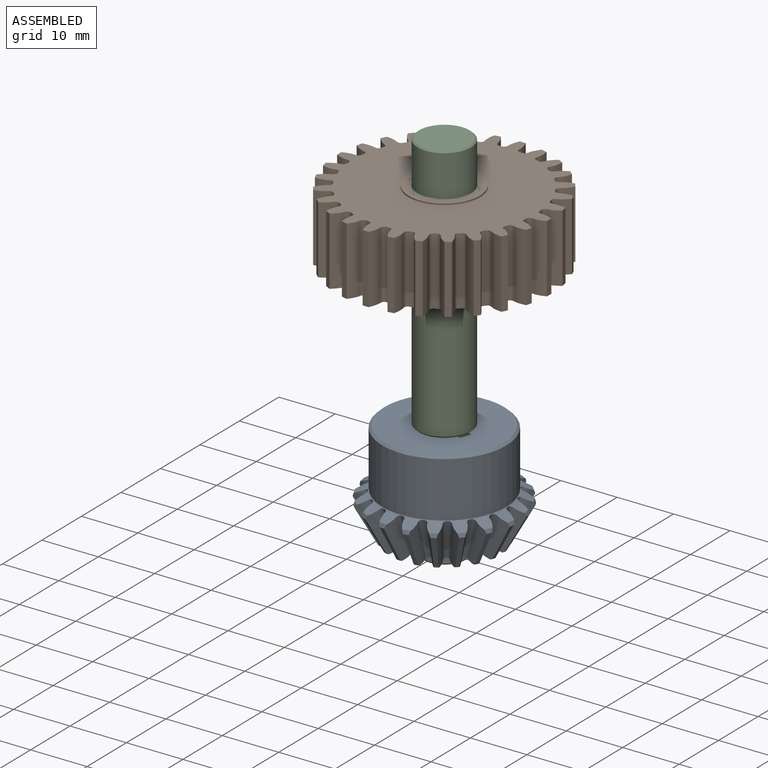
[diagram: assembled view]
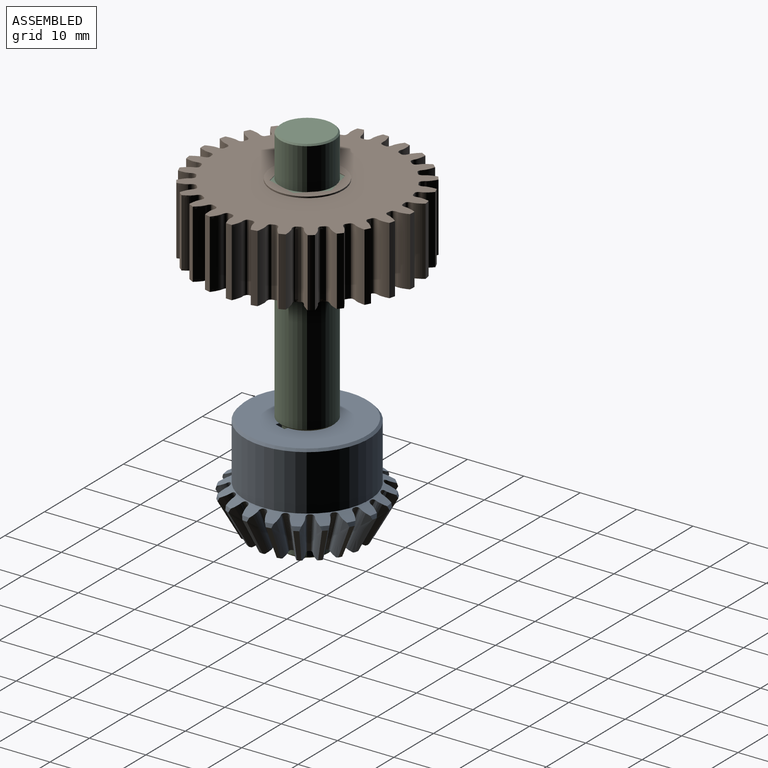
[diagram: assembled view, second angle]
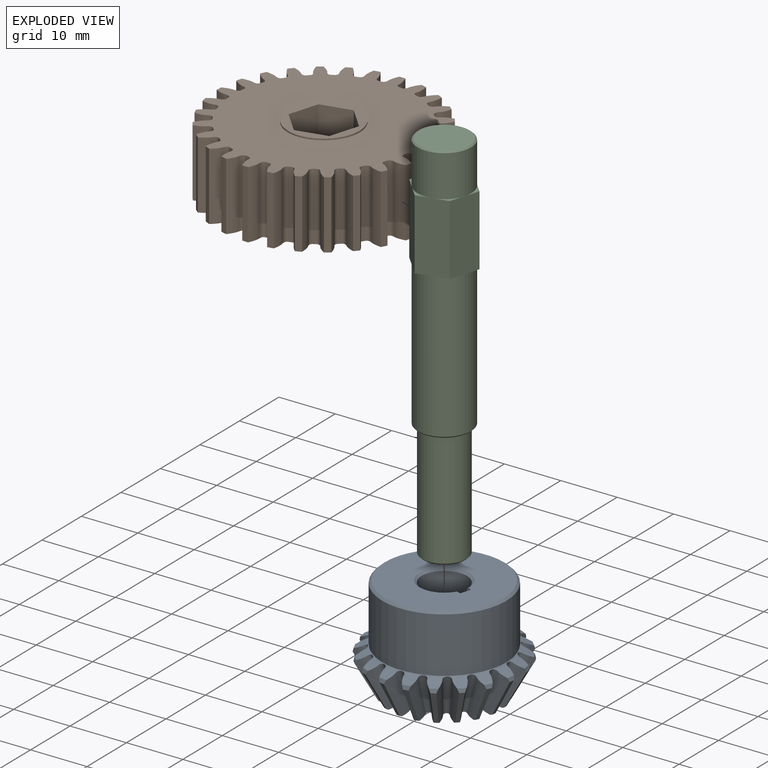
[diagram: exploded view]
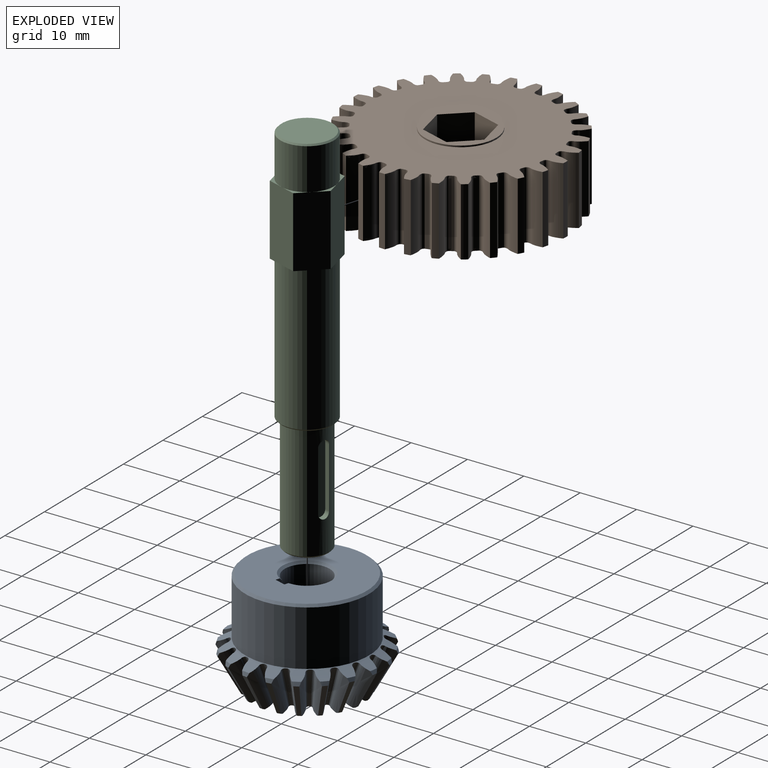
[diagram: exploded view, second angle]
ASSEMBLY  parts=3 mates=2
PART A: 213 faces, bbox 27.2x18.7x27.2 mm
  f0: cylinder r=11mm len=22mm, axis (0,-1,0), area 680.8mm2, adj f1,f7
  f1: cone r=11mm half-angle=45deg, axis (0,1,0), area 38.4mm2, adj f0,f8
  f2: cone r=11.1mm half-angle=63.4deg, axis (0,1,0), area 104.5mm2, adj f5,f7,f9,f10,f11,f12,f13,f14
  f3: cylinder r=4mm len=16.2mm, axis (0,1,0), area 373.4mm2, adj f4,f69,f210,f212
  f4: cone r=4.4mm half-angle=45deg, axis (0,1,0), area 13.8mm2, adj f3,f209,f210,f212
  f5: cone r=11.1mm half-angle=23.4deg, axis (0,-1,0), area 1.3mm2, adj f2,f6,f177,f178
  f6: cone r=9.51mm half-angle=63.4deg, axis (0,1,0), area 118.7mm2, adj f5,f9,f11,f12,f14,f15,f17,f18
  f7: plane 22x22mm, normal (0,1,0), area 0.1mm2, adj f0,f2
  f8: plane 21.2x21.2mm, normal (0,-1,0), area 290.8mm2, adj f1,f69,f210,f211,f212
  f9: bspline ~8.17x4.69mm, area 15.8mm2, adj f2,f6,f10,f70,f71,f72
  f10: cone r=13.38mm half-angle=18.4deg, axis (0,1,0), area 0.8mm2, adj f2,f9,f11,f72
  f11: bspline ~8.17x5.02mm, area 15.8mm2, adj f2,f6,f10,f71,f72,f73
  f12: bspline ~8.17x4.1mm, area 15.8mm2, adj f2,f6,f13,f74,f75,f76
  f13: cone r=13.38mm half-angle=18.4deg, axis (0,1,0), area 0.8mm2, adj f2,f12,f14,f76
  f14: bspline ~8.17x4.1mm, area 15.8mm2, adj f2,f6,f13,f75,f76,f77
  f15: bspline ~8.17x5.02mm, area 15.8mm2, adj f2,f6,f16,f78,f79,f80
  f16: cone r=13.38mm half-angle=18.4deg, axis (0,1,0), area 0.8mm2, adj f2,f15,f17,f80
  f17: bspline ~8.17x4.69mm, area 15.8mm2, adj f2,f6,f16,f79,f80,f81
  f18: bspline ~8.17x5.44mm, area 15.8mm2, adj f2,f6,f19,f82,f83,f84
  f19: cone r=13.38mm half-angle=18.4deg, axis (0,1,0), area 0.8mm2, adj f2,f18,f20,f84
  f20: bspline ~8.17x5.33mm, area 15.8mm2, adj f2,f6,f19,f83,f84,f85
  f21: bspline ~8.17x5.33mm, area 15.8mm2, adj f2,f6,f22,f86,f87,f88
  f22: cone r=13.38mm half-angle=18.4deg, axis (0,1,0), area 0.8mm2, adj f2,f21,f23,f88
  f23: bspline ~8.17x5.44mm, area 15.8mm2, adj f2,f6,f22,f87,f88,f89
  f24: bspline ~8.17x4.69mm, area 15.8mm2, adj f2,f6,f25,f90,f91,f92
  f25: cone r=13.38mm half-angle=18.4deg, axis (0,1,0), area 0.8mm2, adj f2,f24,f26,f92
  f26: bspline ~8.17x5.02mm, area 15.8mm2, adj f2,f6,f25,f91,f92,f93
  f27: bspline ~8.17x4.1mm, area 15.8mm2, adj f2,f6,f28,f94,f95,f96
  f28: cone r=13.38mm half-angle=18.4deg, axis (0,1,0), area 0.8mm2, adj f2,f27,f29,f96
  f29: bspline ~8.17x4.1mm, area 15.8mm2, adj f2,f6,f28,f95,f96,f97
  f30: bspline ~8.17x5.02mm, area 15.8mm2, adj f2,f6,f31,f98,f99,f100
  f31: cone r=13.38mm half-angle=18.4deg, axis (0,1,0), area 0.8mm2, adj f2,f30,f32,f100
  f32: bspline ~8.17x4.69mm, area 15.8mm2, adj f2,f6,f31,f99,f100,f101
  f33: bspline ~8.17x5.44mm, area 15.8mm2, adj f2,f6,f34,f102,f103,f104
  f34: cone r=13.38mm half-angle=18.4deg, axis (0,1,0), area 0.8mm2, adj f2,f33,f35,f104
  f35: bspline ~8.17x5.33mm, area 15.8mm2, adj f2,f6,f34,f103,f104,f105
  f36: bspline ~8.17x5.33mm, area 15.8mm2, adj f2,f6,f37,f106,f107,f108
  f37: cone r=13.38mm half-angle=18.4deg, axis (0,1,0), area 0.8mm2, adj f2,f36,f38,f108
  f38: bspline ~8.17x5.44mm, area 15.8mm2, adj f2,f6,f37,f107,f108,f109
  f39: bspline ~8.17x4.69mm, area 15.8mm2, adj f2,f6,f40,f110,f111,f112
  f40: cone r=13.38mm half-angle=18.4deg, axis (0,1,0), area 0.8mm2, adj f2,f39,f41,f112
  f41: bspline ~8.17x5.02mm, area 15.8mm2, adj f2,f6,f40,f111,f112,f113
  f42: bspline ~8.17x4.1mm, area 15.8mm2, adj f2,f6,f43,f114,f115,f116
  f43: cone r=13.38mm half-angle=18.4deg, axis (0,1,0), area 0.8mm2, adj f2,f42,f44,f116
  f44: bspline ~8.17x4.1mm, area 15.8mm2, adj f2,f6,f43,f115,f116,f117
  f45: bspline ~8.17x5.02mm, area 15.8mm2, adj f2,f6,f46,f118,f119,f120
  f46: cone r=13.38mm half-angle=18.4deg, axis (0,1,0), area 0.8mm2, adj f2,f45,f47,f120
  f47: bspline ~8.17x4.69mm, area 15.8mm2, adj f2,f6,f46,f119,f120,f121
  f48: bspline ~8.17x5.44mm, area 15.8mm2, adj f2,f6,f49,f122,f123,f124
  f49: cone r=13.38mm half-angle=18.4deg, axis (0,1,0), area 0.8mm2, adj f2,f48,f50,f124
  f50: bspline ~8.17x5.33mm, area 15.8mm2, adj f2,f6,f49,f123,f124,f125
  f51: bspline ~8.17x5.33mm, area 15.8mm2, adj f2,f6,f52,f126,f127,f128
  f52: cone r=13.38mm half-angle=18.4deg, axis (0,1,0), area 0.8mm2, adj f2,f51,f53,f128
  f53: bspline ~8.17x5.44mm, area 15.8mm2, adj f2,f6,f52,f127,f128,f129
  f54: bspline ~8.17x4.69mm, area 15.8mm2, adj f2,f6,f55,f130,f131,f132
  f55: cone r=13.38mm half-angle=18.4deg, axis (0,1,0), area 0.8mm2, adj f2,f54,f56,f132
  f56: bspline ~8.17x5.02mm, area 15.8mm2, adj f2,f6,f55,f131,f132,f133
  f57: bspline ~8.17x4.1mm, area 15.8mm2, adj f2,f6,f58,f134,f135,f136
  f58: cone r=13.38mm half-angle=18.4deg, axis (0,1,0), area 0.8mm2, adj f2,f57,f59,f136
  f59: bspline ~8.17x4.1mm, area 15.8mm2, adj f2,f6,f58,f135,f136,f137
  f60: bspline ~8.17x5.02mm, area 15.8mm2, adj f2,f6,f61,f138,f139,f140
  f61: cone r=13.38mm half-angle=18.4deg, axis (0,1,0), area 0.8mm2, adj f2,f60,f62,f140
  f62: bspline ~8.17x4.69mm, area 15.8mm2, adj f2,f6,f61,f139,f140,f141
  f63: bspline ~8.17x5.44mm, area 15.8mm2, adj f2,f6,f64,f142,f143,f144
  f64: cone r=13.38mm half-angle=18.4deg, axis (0,1,0), area 0.8mm2, adj f2,f63,f65,f144
  f65: bspline ~8.17x5.33mm, area 15.8mm2, adj f2,f6,f64,f143,f144,f145
  f66: bspline ~8.17x5.33mm, area 15.8mm2, adj f2,f6,f67,f146,f147,f148
  f67: cone r=13.38mm half-angle=18.4deg, axis (0,1,0), area 0.8mm2, adj f2,f66,f68,f148
  f68: bspline ~8.17x5.44mm, area 15.8mm2, adj f2,f6,f67,f147,f148,f149
  f69: cone r=4.4mm half-angle=45deg, axis (0,-1,0), area 13.8mm2, adj f3,f8,f210,f212
  f70: bspline ~7.91x3.53mm, area 6.7mm2, adj f2,f6,f9,f150
  f71: cone r=9.84mm half-angle=71.6deg, axis (0,-1,0), area 0.3mm2, adj f6,f9,f11,f72
  f72: bspline ~6.61x3.64mm, area 5.6mm2, adj f9,f10,f11,f71
  f73: bspline ~7.91x3.53mm, area 6.7mm2, adj f2,f6,f11,f151
  f74: bspline ~7.91x2.86mm, area 6.7mm2, adj f2,f6,f12,f152
  f75: cone r=9.84mm half-angle=71.6deg, axis (0,-1,0), area 0.3mm2, adj f6,f12,f14,f76
  f76: bspline ~6.61x3.17mm, area 5.6mm2, adj f12,f13,f14,f75
  f77: bspline ~7.91x2.86mm, area 6.7mm2, adj f2,f6,f14,f153
  f78: bspline ~7.91x3.53mm, area 6.7mm2, adj f2,f6,f15,f154
  f79: cone r=9.84mm half-angle=71.6deg, axis (0,-1,0), area 0.3mm2, adj f6,f15,f17,f80
  f80: bspline ~6.61x3.64mm, area 5.6mm2, adj f15,f16,f17,f79
  f81: bspline ~7.91x3.53mm, area 6.7mm2, adj f2,f6,f17,f155
  f82: bspline ~7.91x3.89mm, area 6.7mm2, adj f2,f6,f18,f156
  f83: cone r=9.84mm half-angle=71.6deg, axis (0,-1,0), area 0.3mm2, adj f6,f18,f20,f84
  f84: bspline ~6.61x3.76mm, area 5.6mm2, adj f18,f19,f20,f83
  f85: bspline ~7.91x3.88mm, area 6.7mm2, adj f2,f6,f20,f157
  f86: bspline ~7.91x3.88mm, area 6.7mm2, adj f2,f6,f21,f158
  f87: cone r=9.84mm half-angle=71.6deg, axis (0,-1,0), area 0.3mm2, adj f6,f21,f23,f88
  f88: bspline ~6.61x3.76mm, area 5.6mm2, adj f21,f22,f23,f87
  f89: bspline ~7.91x3.89mm, area 6.7mm2, adj f2,f6,f23,f159
  f90: bspline ~7.91x3.53mm, area 6.7mm2, adj f2,f6,f24,f160
  f91: cone r=9.84mm half-angle=71.6deg, axis (0,-1,0), area 0.3mm2, adj f6,f24,f26,f92
  f92: bspline ~6.61x3.64mm, area 5.6mm2, adj f24,f25,f26,f91
  f93: bspline ~7.91x3.53mm, area 6.7mm2, adj f2,f6,f26,f161
  f94: bspline ~7.91x2.86mm, area 6.7mm2, adj f2,f6,f27,f162
  f95: cone r=9.84mm half-angle=71.6deg, axis (0,-1,0), area 0.3mm2, adj f6,f27,f29,f96
  f96: bspline ~6.61x3.17mm, area 5.6mm2, adj f27,f28,f29,f95
  f97: bspline ~7.91x2.86mm, area 6.7mm2, adj f2,f6,f29,f163
  f98: bspline ~7.91x3.53mm, area 6.7mm2, adj f2,f6,f30,f164
  f99: cone r=9.84mm half-angle=71.6deg, axis (0,-1,0), area 0.3mm2, adj f6,f30,f32,f100
  f100: bspline ~6.61x3.64mm, area 5.6mm2, adj f30,f31,f32,f99
  f101: bspline ~7.91x3.53mm, area 6.7mm2, adj f2,f6,f32,f165
  f102: bspline ~7.91x3.89mm, area 6.7mm2, adj f2,f6,f33,f166
  f103: cone r=9.84mm half-angle=71.6deg, axis (0,-1,0), area 0.3mm2, adj f6,f33,f35,f104
  f104: bspline ~6.61x3.76mm, area 5.6mm2, adj f33,f34,f35,f103
  f105: bspline ~7.91x3.88mm, area 6.7mm2, adj f2,f6,f35,f167
  f106: bspline ~7.91x3.88mm, area 6.7mm2, adj f2,f6,f36,f168
  f107: cone r=9.84mm half-angle=71.6deg, axis (0,-1,0), area 0.3mm2, adj f6,f36,f38,f108
  f108: bspline ~6.61x3.76mm, area 5.6mm2, adj f36,f37,f38,f107
  f109: bspline ~7.91x3.89mm, area 6.7mm2, adj f2,f6,f38,f169
  f110: bspline ~7.91x3.53mm, area 6.7mm2, adj f2,f6,f39,f170
  f111: cone r=9.84mm half-angle=71.6deg, axis (0,-1,0), area 0.3mm2, adj f6,f39,f41,f112
  f112: bspline ~6.61x3.64mm, area 5.6mm2, adj f39,f40,f41,f111
  f113: bspline ~7.91x3.53mm, area 6.7mm2, adj f2,f6,f41,f171
  f114: bspline ~7.91x2.86mm, area 6.7mm2, adj f2,f6,f42,f172
  f115: cone r=9.84mm half-angle=71.6deg, axis (0,-1,0), area 0.3mm2, adj f6,f42,f44,f116
  f116: bspline ~6.61x3.17mm, area 5.6mm2, adj f42,f43,f44,f115
  f117: bspline ~7.91x2.86mm, area 6.7mm2, adj f2,f6,f44,f173
  f118: bspline ~7.91x3.53mm, area 6.7mm2, adj f2,f6,f45,f174
  f119: cone r=9.84mm half-angle=71.6deg, axis (0,-1,0), area 0.3mm2, adj f6,f45,f47,f120
  f120: bspline ~6.61x3.64mm, area 5.6mm2, adj f45,f46,f47,f119
  f121: bspline ~7.91x3.53mm, area 6.7mm2, adj f2,f6,f47,f175
  f122: bspline ~7.91x3.89mm, area 6.7mm2, adj f2,f6,f48,f176
  f123: cone r=9.84mm half-angle=71.6deg, axis (0,-1,0), area 0.3mm2, adj f6,f48,f50,f124
  f124: bspline ~6.61x3.76mm, area 5.6mm2, adj f48,f49,f50,f123
  f125: bspline ~7.91x3.88mm, area 6.7mm2, adj f2,f6,f50,f177
  f126: bspline ~7.91x3.88mm, area 6.7mm2, adj f2,f6,f51,f178
  f127: cone r=9.84mm half-angle=71.6deg, axis (0,-1,0), area 0.3mm2, adj f6,f51,f53,f128
  f128: bspline ~6.61x3.76mm, area 5.6mm2, adj f51,f52,f53,f127
  f129: bspline ~7.91x3.89mm, area 6.7mm2, adj f2,f6,f53,f179
  f130: bspline ~7.91x3.53mm, area 6.7mm2, adj f2,f6,f54,f180
  f131: cone r=9.84mm half-angle=71.6deg, axis (0,-1,0), area 0.3mm2, adj f6,f54,f56,f132
  f132: bspline ~6.61x3.64mm, area 5.6mm2, adj f54,f55,f56,f131
  f133: bspline ~7.91x3.53mm, area 6.7mm2, adj f2,f6,f56,f181
  f134: bspline ~7.91x2.86mm, area 6.7mm2, adj f2,f6,f57,f182
  f135: cone r=9.84mm half-angle=71.6deg, axis (0,-1,0), area 0.3mm2, adj f6,f57,f59,f136
  f136: bspline ~6.61x3.17mm, area 5.6mm2, adj f57,f58,f59,f135
  f137: bspline ~7.91x2.86mm, area 6.7mm2, adj f2,f6,f59,f183
  f138: bspline ~7.91x3.53mm, area 6.7mm2, adj f2,f6,f60,f184
  f139: cone r=9.84mm half-angle=71.6deg, axis (0,-1,0), area 0.3mm2, adj f6,f60,f62,f140
  f140: bspline ~6.61x3.64mm, area 5.6mm2, adj f60,f61,f62,f139
  f141: bspline ~7.91x3.53mm, area 6.7mm2, adj f2,f6,f62,f185
  f142: bspline ~7.91x3.89mm, area 6.7mm2, adj f2,f6,f63,f186
  f143: cone r=9.84mm half-angle=71.6deg, axis (0,-1,0), area 0.3mm2, adj f6,f63,f65,f144
  f144: bspline ~6.61x3.76mm, area 5.6mm2, adj f63,f64,f65,f143
  f145: bspline ~7.91x3.88mm, area 6.7mm2, adj f2,f6,f65,f187
  f146: bspline ~7.91x3.88mm, area 6.7mm2, adj f2,f6,f66,f188
  f147: cone r=9.84mm half-angle=71.6deg, axis (0,-1,0), area 0.3mm2, adj f6,f66,f68,f148
  f148: bspline ~6.61x3.76mm, area 5.6mm2, adj f66,f67,f68,f147
  f149: bspline ~7.91x3.89mm, area 6.7mm2, adj f2,f6,f68,f189
  f150: plane 7.36x3.02mm, normal (-0.32,0,-0.95), area 0mm2, adj f2,f6,f70,f190
  f151: plane 7.36x2.59mm, normal (0.58,0,0.81), area 0mm2, adj f2,f6,f73,f191
  f152: plane 7.36x2.56mm, normal (-0.59,0,-0.8), area 0mm2, adj f2,f6,f74,f191
  f153: plane 7.36x2.56mm, normal (0.8,0,0.59), area 0mm2, adj f2,f6,f77,f192
  f154: plane 7.36x2.59mm, normal (-0.81,0,-0.58), area 0mm2, adj f2,f6,f78,f192
  f155: plane 7.36x3.02mm, normal (0.95,0,0.32), area 0mm2, adj f2,f6,f81,f193
  f156: plane 7.36x3.03mm, normal (-0.95,0,-0.3), area 0mm2, adj f2,f6,f82,f193
  f157: plane 7.36x3.18mm, normal (1,0,0.01), area 0mm2, adj f2,f6,f85,f194
  f158: plane 7.36x3.18mm, normal (-1,0,0.01), area 0mm2, adj f2,f6,f86,f194
  f159: plane 7.36x3.03mm, normal (0.95,0,-0.3), area 0mm2, adj f2,f6,f89,f195
  f160: plane 7.36x3.02mm, normal (-0.95,0,0.32), area 0mm2, adj f2,f6,f90,f195
  f161: plane 7.36x2.59mm, normal (0.81,0,-0.58), area 0mm2, adj f2,f6,f93,f196
  f162: plane 7.36x2.56mm, normal (-0.8,0,0.59), area 0mm2, adj f2,f6,f94,f196
  f163: plane 7.36x2.56mm, normal (0.59,0,-0.8), area 0mm2, adj f2,f6,f97,f197
  f164: plane 7.36x2.59mm, normal (-0.58,0,0.81), area 0mm2, adj f2,f6,f98,f197
  f165: plane 7.36x3.02mm, normal (0.32,0,-0.95), area 0mm2, adj f2,f6,f101,f198
  f166: plane 7.36x3.03mm, normal (-0.3,0,0.95), area 0mm2, adj f2,f6,f102,f198
  f167: plane 7.36x3.18mm, normal (0.01,0,-1), area 0mm2, adj f2,f6,f105,f199
  f168: plane 7.36x3.18mm, normal (0.01,0,1), area 0mm2, adj f2,f6,f106,f199
  f169: plane 7.36x3.03mm, normal (-0.3,0,-0.95), area 0mm2, adj f2,f6,f109,f200
  f170: plane 7.36x3.02mm, normal (0.32,0,0.95), area 0mm2, adj f2,f6,f110,f200
  f171: plane 7.36x2.59mm, normal (-0.58,0,-0.81), area 0mm2, adj f2,f6,f113,f201
  f172: plane 7.36x2.56mm, normal (0.59,0,0.8), area 0mm2, adj f2,f6,f114,f201
  f173: plane 7.36x2.56mm, normal (-0.8,0,-0.59), area 0mm2, adj f2,f6,f117,f202
  f174: plane 7.36x2.59mm, normal (0.81,0,0.58), area 0mm2, adj f2,f6,f118,f202
  f175: plane 7.36x3.02mm, normal (-0.95,0,-0.32), area 0mm2, adj f2,f6,f121,f203
  f176: plane 7.36x3.03mm, normal (0.95,0,0.3), area 0mm2, adj f2,f6,f122,f203
  f177: plane 7.36x3.18mm, normal (-1,0,-0.01), area 0mm2, adj f2,f5,f6,f125
  f178: plane 7.36x3.18mm, normal (1,0,-0.01), area 0mm2, adj f2,f5,f6,f126
  f179: plane 7.36x3.03mm, normal (-0.95,0,0.3), area 0mm2, adj f2,f6,f129,f204
  f180: plane 7.36x3.02mm, normal (0.95,0,-0.32), area 0mm2, adj f2,f6,f130,f204
  f181: plane 7.36x2.59mm, normal (-0.81,0,0.58), area 0mm2, adj f2,f6,f133,f205
  f182: plane 7.36x2.56mm, normal (0.8,0,-0.59), area 0mm2, adj f2,f6,f134,f205
  f183: plane 7.36x2.56mm, normal (-0.59,0,0.8), area 0mm2, adj f2,f6,f137,f206
  f184: plane 7.36x2.59mm, normal (0.58,0,-0.81), area 0mm2, adj f2,f6,f138,f206
  f185: plane 7.36x3.02mm, normal (-0.32,0,0.95), area 0mm2, adj f2,f6,f141,f207
  f186: plane 7.36x3.03mm, normal (0.3,0,-0.95), area 0mm2, adj f2,f6,f142,f207
  f187: plane 7.36x3.18mm, normal (-0.01,0,1), area 0mm2, adj f2,f6,f145,f208
  f188: plane 7.36x3.18mm, normal (-0.01,0,-1), area 0mm2, adj f2,f6,f146,f208
  f189: plane 7.36x3.03mm, normal (0.3,0,0.95), area 0mm2, adj f2,f6,f149,f190
  f190: cone r=11.1mm half-angle=23.4deg, axis (0,-1,0), area 1.3mm2, adj f2,f6,f150,f189
  f191: cone r=11.1mm half-angle=23.4deg, axis (0,-1,0), area 1.3mm2, adj f2,f6,f151,f152
  f192: cone r=11.1mm half-angle=23.4deg, axis (0,-1,0), area 1.3mm2, adj f2,f6,f153,f154
  f193: cone r=11.1mm half-angle=23.4deg, axis (0,-1,0), area 1.3mm2, adj f2,f6,f155,f156
  f194: cone r=11.1mm half-angle=23.4deg, axis (0,-1,0), area 1.3mm2, adj f2,f6,f157,f158
  f195: cone r=11.1mm half-angle=23.4deg, axis (0,-1,0), area 1.3mm2, adj f2,f6,f159,f160
  f196: cone r=11.1mm half-angle=23.4deg, axis (0,-1,0), area 1.3mm2, adj f2,f6,f161,f162
  f197: cone r=11.1mm half-angle=23.4deg, axis (0,-1,0), area 1.3mm2, adj f2,f6,f163,f164
  f198: cone r=11.1mm half-angle=23.4deg, axis (0,-1,0), area 1.3mm2, adj f2,f6,f165,f166
  f199: cone r=11.1mm half-angle=23.4deg, axis (0,-1,0), area 1.3mm2, adj f2,f6,f167,f168
  f200: cone r=11.1mm half-angle=23.4deg, axis (0,-1,0), area 1.3mm2, adj f2,f6,f169,f170
  f201: cone r=11.1mm half-angle=23.4deg, axis (0,-1,0), area 1.3mm2, adj f2,f6,f171,f172
  f202: cone r=11.1mm half-angle=23.4deg, axis (0,-1,0), area 1.3mm2, adj f2,f6,f173,f174
  f203: cone r=11.1mm half-angle=23.4deg, axis (0,-1,0), area 1.3mm2, adj f2,f6,f175,f176
  f204: cone r=11.1mm half-angle=23.4deg, axis (0,-1,0), area 1.3mm2, adj f2,f6,f179,f180
  f205: cone r=11.1mm half-angle=23.4deg, axis (0,-1,0), area 1.3mm2, adj f2,f6,f181,f182
  f206: cone r=11.1mm half-angle=23.4deg, axis (0,-1,0), area 1.3mm2, adj f2,f6,f183,f184
  f207: cone r=11.1mm half-angle=23.4deg, axis (0,-1,0), area 1.3mm2, adj f2,f6,f185,f186
  f208: cone r=11.1mm half-angle=23.4deg, axis (0,-1,0), area 1.3mm2, adj f2,f6,f187,f188
  f209: plane 13.22x13.22mm, normal (0,1,0), area 75mm2, adj f4,f6,f210,f211,f212
  f210: plane 17x1.17mm, normal (-1,0,0), area 19.6mm2, adj f3,f4,f8,f69,f209,f211
  f211: plane 17x2.06mm, normal (0,0,1), area 35mm2, adj f8,f209,f210,f212
  f212: plane 17x1.17mm, normal (1,0,0), area 19.6mm2, adj f3,f4,f8,f69,f209,f211
PART B: 68 faces, bbox 38x12.6x38 mm
  f0: cylinder r=6.35mm len=12.7mm, axis (0,1,0), area 10.7mm2, adj f29,f61
  f1: cylinder r=6.35mm len=12.7mm, axis (0,1,0), area 10.7mm2, adj f31,f60
  f2: cylinder r=19.05mm len=12.07mm, axis (0,-1,0), area 12.9mm2, adj f29,f31,f58,f59
  f3: cylinder r=19.05mm len=12.07mm, axis (0,-1,0), area 12.9mm2, adj f29,f31,f57,f58
  f4: cylinder r=19.05mm len=12.07mm, axis (0,-1,0), area 12.9mm2, adj f29,f31,f56,f57
  f5: cylinder r=19.05mm len=12.07mm, axis (0,-1,0), area 12.9mm2, adj f29,f31,f55,f56
  f6: cylinder r=19.05mm len=12.07mm, axis (0,-1,0), area 12.9mm2, adj f29,f31,f54,f55
  f7: cylinder r=19.05mm len=12.07mm, axis (0,-1,0), area 12.9mm2, adj f29,f31,f53,f54
  f8: cylinder r=19.05mm len=12.07mm, axis (0,-1,0), area 12.9mm2, adj f29,f31,f52,f53
  f9: cylinder r=19.05mm len=12.07mm, axis (0,-1,0), area 12.9mm2, adj f29,f31,f51,f52
  f10: cylinder r=19.05mm len=12.07mm, axis (0,-1,0), area 12.9mm2, adj f29,f31,f50,f51
  f11: cylinder r=19.05mm len=12.07mm, axis (0,-1,0), area 12.9mm2, adj f29,f31,f49,f50
  f12: cylinder r=19.05mm len=12.07mm, axis (0,-1,0), area 12.9mm2, adj f29,f31,f48,f49
  f13: cylinder r=19.05mm len=12.07mm, axis (0,-1,0), area 12.9mm2, adj f29,f31,f47,f48
  f14: cylinder r=19.05mm len=12.07mm, axis (0,-1,0), area 12.9mm2, adj f29,f31,f46,f47
  f15: cylinder r=19.05mm len=12.07mm, axis (0,-1,0), area 12.9mm2, adj f29,f31,f45,f46
  f16: cylinder r=19.05mm len=12.07mm, axis (0,-1,0), area 12.9mm2, adj f29,f31,f44,f45
  f17: cylinder r=19.05mm len=12.07mm, axis (0,-1,0), area 12.9mm2, adj f29,f31,f43,f44
  f18: cylinder r=19.05mm len=12.07mm, axis (0,-1,0), area 12.9mm2, adj f29,f31,f42,f43
  f19: cylinder r=19.05mm len=12.07mm, axis (0,-1,0), area 12.9mm2, adj f29,f31,f41,f42
  f20: cylinder r=19.05mm len=12.07mm, axis (0,-1,0), area 12.9mm2, adj f29,f31,f40,f41
  f21: cylinder r=19.05mm len=12.07mm, axis (0,-1,0), area 12.9mm2, adj f29,f31,f39,f40
  f22: cylinder r=19.05mm len=12.07mm, axis (0,-1,0), area 12.9mm2, adj f29,f31,f38,f39
  f23: cylinder r=19.05mm len=12.07mm, axis (0,-1,0), area 12.9mm2, adj f29,f31,f37,f38
  f24: cylinder r=19.05mm len=12.07mm, axis (0,-1,0), area 12.9mm2, adj f29,f31,f36,f37
  f25: cylinder r=19.05mm len=12.07mm, axis (0,-1,0), area 12.9mm2, adj f29,f31,f35,f36
  f26: cylinder r=19.05mm len=12.07mm, axis (0,-1,0), area 12.9mm2, adj f29,f31,f34,f35
  f27: cylinder r=19.05mm len=12.07mm, axis (0,-1,0), area 12.9mm2, adj f29,f31,f33,f34
  f28: cylinder r=19.05mm len=12.07mm, axis (0,-1,0), area 12.9mm2, adj f29,f31,f32,f33
  f29: plane 37.97x37.97mm, normal (0,-1,0), area 846.4mm2, adj f0,f2,f3,f4,f5,f6,f7,f8
  f30: cylinder r=19.05mm len=12.07mm, axis (0,-1,0), area 12.9mm2, adj f29,f31,f32,f59
  f31: plane 37.97x37.97mm, normal (0,1,0), area 846.4mm2, adj f1,f2,f3,f4,f5,f6,f7,f8
  f32: extruded ~12.07x3.2mm, area 85.1mm2, adj f28,f29,f30,f31
  f33: extruded ~12.07x3.15mm, area 85.1mm2, adj f27,f28,f29,f31
  f34: extruded ~12.07x3.37mm, area 85.1mm2, adj f26,f27,f29,f31
  f35: extruded ~12.07x3.47mm, area 85.1mm2, adj f25,f26,f29,f31
  f36: extruded ~12.07x3.47mm, area 85.1mm2, adj f24,f25,f29,f31
  f37: extruded ~12.07x3.37mm, area 85.1mm2, adj f23,f24,f29,f31
  f38: extruded ~12.07x3.15mm, area 85.1mm2, adj f22,f23,f29,f31
  f39: extruded ~12.07x3.2mm, area 85.1mm2, adj f21,f22,f29,f31
  f40: extruded ~12.07x3.15mm, area 85.1mm2, adj f20,f21,f29,f31
  f41: extruded ~12.07x3.37mm, area 85.1mm2, adj f19,f20,f29,f31
  f42: extruded ~12.07x3.47mm, area 85.1mm2, adj f18,f19,f29,f31
  f43: extruded ~12.07x3.47mm, area 85.1mm2, adj f17,f18,f29,f31
  f44: extruded ~12.07x3.37mm, area 85.1mm2, adj f16,f17,f29,f31
  f45: extruded ~12.07x3.15mm, area 85.1mm2, adj f15,f16,f29,f31
  f46: extruded ~12.07x3.2mm, area 85.1mm2, adj f14,f15,f29,f31
  f47: extruded ~12.07x3.15mm, area 85.1mm2, adj f13,f14,f29,f31
  f48: extruded ~12.07x3.37mm, area 85.1mm2, adj f12,f13,f29,f31
  f49: extruded ~12.07x3.47mm, area 85.1mm2, adj f11,f12,f29,f31
  f50: extruded ~12.07x3.47mm, area 85.1mm2, adj f10,f11,f29,f31
  f51: extruded ~12.07x3.37mm, area 85.1mm2, adj f9,f10,f29,f31
  f52: extruded ~12.07x3.15mm, area 85.1mm2, adj f8,f9,f29,f31
  f53: extruded ~12.07x3.2mm, area 85.1mm2, adj f7,f8,f29,f31
  f54: extruded ~12.07x3.15mm, area 85.1mm2, adj f6,f7,f29,f31
  f55: extruded ~12.07x3.37mm, area 85.1mm2, adj f5,f6,f29,f31
  f56: extruded ~12.07x3.47mm, area 85.1mm2, adj f4,f5,f29,f31
  f57: extruded ~12.07x3.47mm, area 85.1mm2, adj f3,f4,f29,f31
  f58: extruded ~12.07x3.37mm, area 85.1mm2, adj f2,f3,f29,f31
  f59: extruded ~12.07x3.15mm, area 85.1mm2, adj f2,f29,f30,f31
  f60: plane 12.7x12.7mm, normal (0,1,0), area 47.3mm2, adj f1,f62,f63,f64,f65,f66,f67
  f61: plane 12.7x12.7mm, normal (0,-1,0), area 47.3mm2, adj f0,f62,f63,f64,f65,f66,f67
  f62: plane 12.6x4.79mm, normal (0.5,0,-0.87), area 69.7mm2, adj f60,f61,f63,f67
  f63: plane 12.6x5.53mm, normal (1,0,0), area 69.7mm2, adj f60,f61,f62,f64
  f64: plane 12.6x4.79mm, normal (0.5,0,0.87), area 69.7mm2, adj f60,f61,f63,f65
  f65: plane 12.6x4.79mm, normal (-0.5,0,0.87), area 69.7mm2, adj f60,f61,f64,f66
  f66: plane 12.6x5.53mm, normal (-1,0,0), area 69.7mm2, adj f60,f61,f65,f67
  f67: plane 12.6x4.79mm, normal (-0.5,0,-0.87), area 69.7mm2, adj f60,f61,f62,f66
PART C: 32 faces, bbox 11x66.7x9.5 mm
  f0: cone r=4.76mm half-angle=45deg, axis (0,1,0), area 10.4mm2, adj f5,f25
  f1: cone r=3.72mm half-angle=45deg, axis (0,1,0), area 8.7mm2, adj f2,f26
  f2: cylinder r=3.98mm len=20.45mm, axis (0,-1,0), area 485.9mm2, adj f1,f25,f27,f28,f29,f30
  f3: cone r=4.5mm half-angle=45deg, axis (0,-1,0), area 10.4mm2, adj f4,f18
  f4: cylinder r=4.76mm len=9.51mm, axis (0,1,0), area 220.1mm2, adj f3,f12,f13,f14,f15,f16,f17
  f5: cylinder r=4.76mm len=25.6mm, axis (0,-1,0), area 765.1mm2, adj f0,f19,f20,f21,f22,f23,f24
  f6: plane 12.5x4.76mm, normal (0.87,0,-0.5), area 68.6mm2, adj f7,f11,f12,f13,f21,f23
  f7: plane 12.5x5.49mm, normal (0,0,-1), area 68.6mm2, adj f6,f8,f13,f14,f20,f21
  f8: plane 12.5x4.76mm, normal (-0.87,0,-0.5), area 68.6mm2, adj f7,f9,f14,f15,f19,f20
  f9: plane 12.5x4.76mm, normal (-0.87,0,0.5), area 68.6mm2, adj f8,f10,f15,f16,f19,f22
  f10: plane 12.5x5.49mm, normal (0,0,1), area 68.6mm2, adj f9,f11,f16,f17,f22,f24
  f11: plane 12.5x4.76mm, normal (0.87,0,0.5), area 68.6mm2, adj f6,f10,f12,f17,f23,f24
  f12: plane 4.76x1.37mm, normal (0,1,0), area 1.2mm2, adj f4,f6,f11
  f13: plane 4.12x2.38mm, normal (0,1,0), area 1.2mm2, adj f4,f6,f7
  f14: plane 4.12x2.38mm, normal (0,1,0), area 1.2mm2, adj f4,f7,f8
  f15: plane 4.76x1.37mm, normal (0,1,0), area 1.2mm2, adj f4,f8,f9
  f16: plane 4.12x2.38mm, normal (0,1,0), area 1.2mm2, adj f4,f9,f10
  f17: plane 4.12x2.38mm, normal (0,1,0), area 1.2mm2, adj f4,f10,f11
  f18: plane 9x9mm, normal (0,1,0), area 63.7mm2, adj f3
  f19: plane 4.76x1.37mm, normal (0,-1,0), area 1.2mm2, adj f5,f8,f9
  f20: plane 4.12x2.38mm, normal (0,-1,0), area 1.2mm2, adj f5,f7,f8
  f21: plane 4.12x2.38mm, normal (0,-1,0), area 1.2mm2, adj f5,f6,f7
  f22: plane 4.12x2.38mm, normal (0,-1,0), area 1.2mm2, adj f5,f9,f10
  f23: plane 4.76x1.37mm, normal (0,-1,0), area 1.2mm2, adj f5,f6,f11
  f24: plane 4.12x2.38mm, normal (0,-1,0), area 1.2mm2, adj f5,f10,f11
  f25: plane 9x9mm, normal (0,-1,0), area 14mm2, adj f0,f2
  f26: plane 7.44x7.44mm, normal (0,-1,0), area 43.5mm2, adj f1
  f27: cylinder r=1mm len=2.01mm, axis (1,0,0), area 2.8mm2, adj f2,f28,f30,f31
  f28: plane 10.67x0.89mm, normal (0,0,-1), area 9.5mm2, adj f2,f27,f29,f31
  f29: cylinder r=1mm len=2.01mm, axis (1,0,0), area 2.8mm2, adj f2,f28,f30,f31
  f30: plane 10.67x0.89mm, normal (0,0,1), area 9.5mm2, adj f2,f27,f29,f31
  f31: plane 12.67x2.01mm, normal (1,0,0), area 24.6mm2, adj f27,f28,f29,f30
PLACE A rot(axis=(-0.69,-0.51,0.51),110.8deg) t=(0.03,-32.36,-34.33)mm
PLACE B rot(axis=(0.27,-0.68,-0.68),149.9deg) t=(0,-32.36,8.77)mm
PLACE C rot(axis=(0.69,0.51,0.51),110.8deg) t=(0.03,-32.36,-44.03)mm
MATE fastened C.f10 <-> B.f64  axis (0.96,-0.29,0) through (4.58,-33.74,8.77)mm
MATE fastened C.f0 <-> A.f0  axis (0,0,-1) through (0.03,-32.36,-23.33)mm
